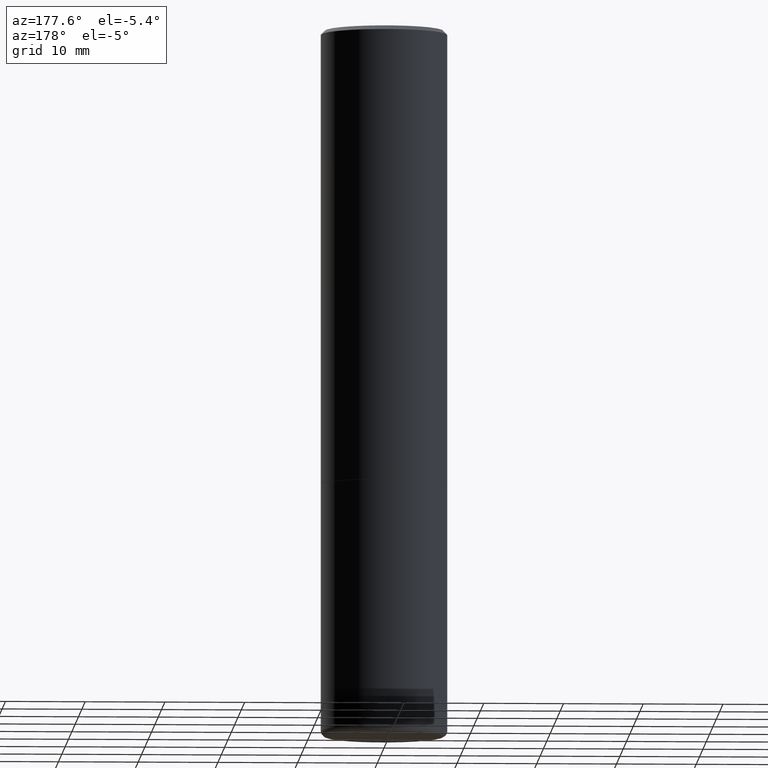
[diagram: clean part render]
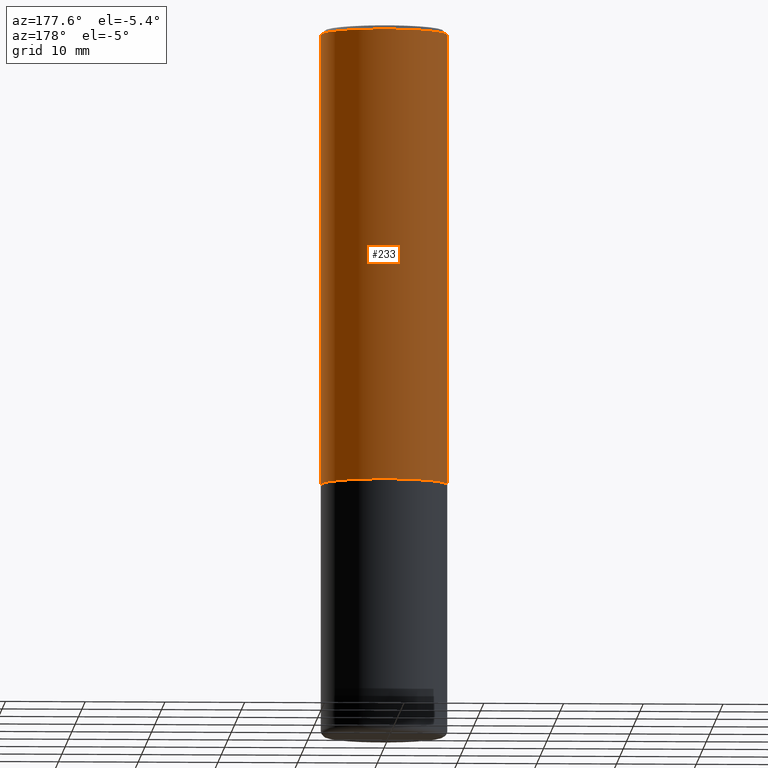
[diagram: same view with one face highlighted and labeled with its STEP entity id]
A machine part, auxiliary view. The second image highlights one B-rep face of the part: STEP entity #233.
In plain terms, the highlighted cylindrical surface (partial cylindrical patch) has radius 7.9375 mm, axis along (-0, 0, 1).
Its self-contained STEP definition (entity closure, byte-faithful):
#18 = FACE_OUTER_BOUND ( 'NONE', #26, .T. ) ;
#26 = EDGE_LOOP ( 'NONE', ( #178, #192, #390, #305 ) ) ;
#44 = DIRECTION ( 'NONE',  ( -2.445468806185136877E-29, 3.491481338843145188E-15, 1.000000000000000000 ) ) ;
#47 = CARTESIAN_POINT ( 'NONE',  ( 4.890937612370276662E-31, -6.982962677686296539E-17, -0.02000000000000001776 ) ) ;
#54 = VECTOR ( 'NONE', #44, 39.37007874015748143 ) ;
#70 = DIRECTION ( 'NONE',  ( -2.445468806185136597E-29, 3.491481338843145583E-15, 1.000000000000000000 ) ) ;
#79 = VERTEX_POINT ( 'NONE', #344 ) ;
#82 = CIRCLE ( 'NONE', #199, 0.3125000000000000000 ) ;
#85 = CARTESIAN_POINT ( 'NONE',  ( 0.3124999999999998890, -2.182175836776957558E-15, 1.523805242436229235E-29 ) ) ;
#157 = CARTESIAN_POINT ( 'NONE',  ( 0.000000000000000000, 0.000000000000000000, 0.000000000000000000 ) ) ;
#178 = ORIENTED_EDGE ( 'NONE', *, *, #280, .T. ) ;
#190 = CARTESIAN_POINT ( 'NONE',  ( -0.3125000000000000000, -1.740639529667232739E-15, -2.248999999999999222 ) ) ;
#192 = ORIENTED_EDGE ( 'NONE', *, *, #408, .T. ) ;
#199 = AXIS2_PLACEMENT_3D ( 'NONE', #427, #274, #241 ) ;
#217 = LINE ( 'NONE', #335, #54 ) ;
#221 = AXIS2_PLACEMENT_3D ( 'NONE', #157, #393, #320 ) ;
#233 = ADVANCED_FACE ( 'NONE', ( #18 ), #419, .T. ) ;
#241 = DIRECTION ( 'NONE',  ( 1.000000000000000000, -6.982962677686269077E-15, 0.000000000000000000 ) ) ;
#245 = LINE ( 'NONE', #85, #340 ) ;
#255 = DIRECTION ( 'NONE',  ( -2.445468806185136877E-29, 3.491481338843145188E-15, 1.000000000000000000 ) ) ;
#257 = CIRCLE ( 'NONE', #372, 0.3124999999999998335 ) ;
#274 = DIRECTION ( 'NONE',  ( -2.445468806185136597E-29, 3.491481338843145583E-15, 1.000000000000000000 ) ) ;
#279 = DIRECTION ( 'NONE',  ( 1.000000000000000000, -6.982962677686266711E-15, 0.000000000000000000 ) ) ;
#280 = EDGE_CURVE ( 'NONE', #79, #330, #82, .T. ) ;
#299 = CARTESIAN_POINT ( 'NONE',  ( 0.3124999999999998335, -2.213735251080465334E-15, -0.02000000000000001776 ) ) ;
#305 = ORIENTED_EDGE ( 'NONE', *, *, #403, .F. ) ;
#320 = DIRECTION ( 'NONE',  ( 1.000000000000000000, -6.982962677686266711E-15, 4.876176775795935232E-29 ) ) ;
#327 = EDGE_CURVE ( 'NONE', #417, #392, #257, .T. ) ;
#330 = VERTEX_POINT ( 'NONE', #190 ) ;
#335 = CARTESIAN_POINT ( 'NONE',  ( -0.3124999999999998890, 2.220446049250312292E-15, -1.537167215704657391E-29 ) ) ;
#340 = VECTOR ( 'NONE', #255, 39.37007874015748143 ) ;
#344 = CARTESIAN_POINT ( 'NONE',  ( 0.3125000000000000000, -1.003451736783519063E-14, -2.248999999999999222 ) ) ;
#346 = CARTESIAN_POINT ( 'NONE',  ( -0.3124999999999998335, 2.112346210000093866E-15, -0.02000000000000001776 ) ) ;
#372 = AXIS2_PLACEMENT_3D ( 'NONE', #47, #70, #279 ) ;
#390 = ORIENTED_EDGE ( 'NONE', *, *, #327, .F. ) ;
#392 = VERTEX_POINT ( 'NONE', #346 ) ;
#393 = DIRECTION ( 'NONE',  ( -2.445468806185136597E-29, 3.491481338843145583E-15, 1.000000000000000000 ) ) ;
#403 = EDGE_CURVE ( 'NONE', #79, #417, #245, .T. ) ;
#408 = EDGE_CURVE ( 'NONE', #330, #392, #217, .T. ) ;
#417 = VERTEX_POINT ( 'NONE', #299 ) ;
#419 = CYLINDRICAL_SURFACE ( 'NONE', #221, 0.3124999999999998890 ) ;
#427 = CARTESIAN_POINT ( 'NONE',  ( 5.499859345110370619E-29, -7.852341531058232286E-15, -2.248999999999999222 ) ) ;